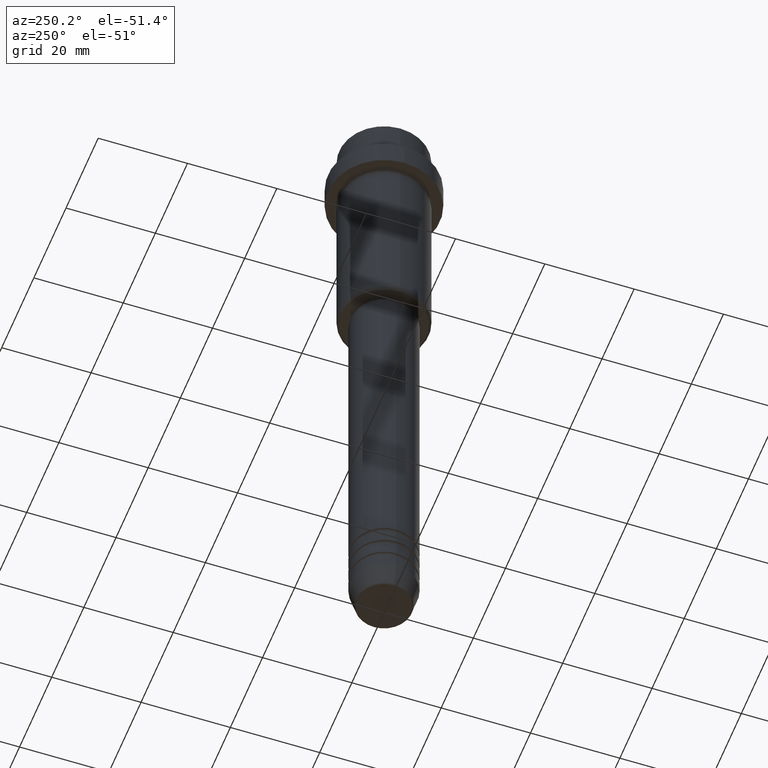
[diagram: clean part render]
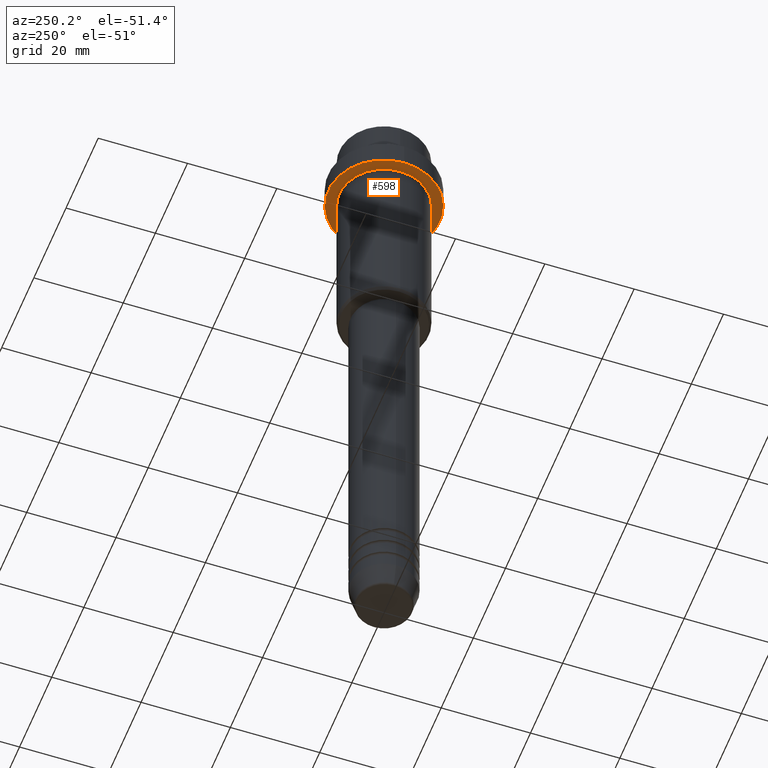
[diagram: same view with one face highlighted and labeled with its STEP entity id]
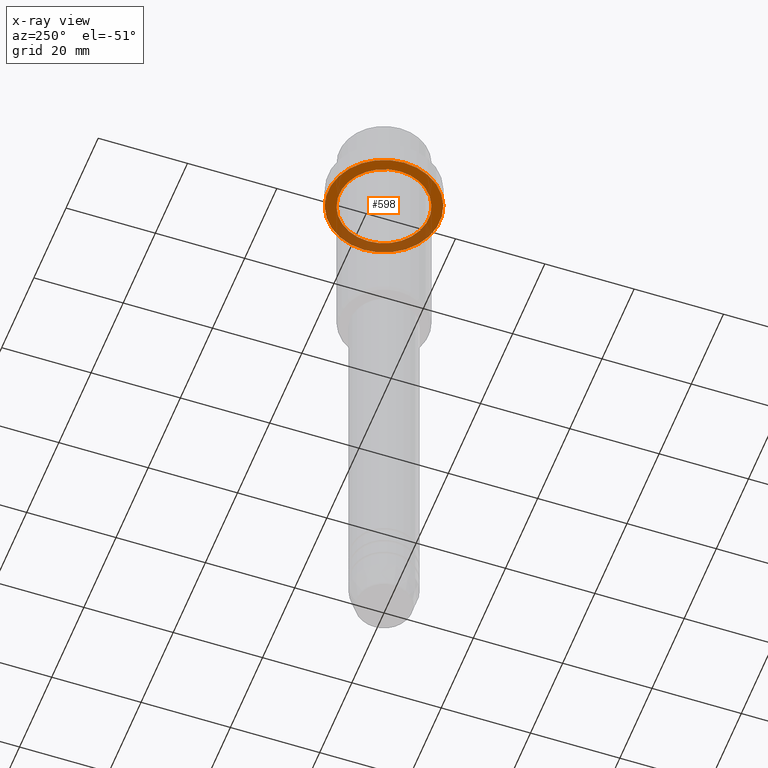
[diagram: x-ray of the same camera — body ghosted, the highlighted face saturated]
A machine part, auxiliary view. The second image highlights one B-rep face of the part: STEP entity #598.
The next image is the same camera in x-ray: the body ghosted, the highlighted face saturated — about 32% of this face is hidden behind the body in this view.
In plain terms, the highlighted planar face has unit normal (0, 0, -1).
Its self-contained STEP definition (entity closure, byte-faithful):
#2 = DIRECTION ( 'NONE',  ( 1.000000000000000000, 0.000000000000000000, 0.000000000000000000 ) ) ;
#36 = DIRECTION ( 'NONE',  ( -0.000000000000000000, -0.000000000000000000, 1.000000000000000000 ) ) ;
#76 = EDGE_CURVE ( 'NONE', #718, #1343, #1332, .T. ) ;
#106 = AXIS2_PLACEMENT_3D ( 'NONE', #1287, #1190, #1396 ) ;
#130 = CARTESIAN_POINT ( 'NONE',  ( 0.000000000000000000, 0.000000000000000000, -15.00000000000000178 ) ) ;
#136 = CARTESIAN_POINT ( 'NONE',  ( 12.50000000000000000, 0.000000000000000000, -15.00000000000000178 ) ) ;
#186 = ORIENTED_EDGE ( 'NONE', *, *, #899, .F. ) ;
#208 = EDGE_LOOP ( 'NONE', ( #1415, #910 ) ) ;
#245 = AXIS2_PLACEMENT_3D ( 'NONE', #475, #36, #1359 ) ;
#332 = CIRCLE ( 'NONE', #245, 12.50000000000000000 ) ;
#410 = ORIENTED_EDGE ( 'NONE', *, *, #1232, .F. ) ;
#444 = AXIS2_PLACEMENT_3D ( 'NONE', #130, #452, #2 ) ;
#452 = DIRECTION ( 'NONE',  ( -0.000000000000000000, -0.000000000000000000, 1.000000000000000000 ) ) ;
#475 = CARTESIAN_POINT ( 'NONE',  ( 0.000000000000000000, 0.000000000000000000, -15.00000000000000178 ) ) ;
#484 = DIRECTION ( 'NONE',  ( -1.000000000000000000, 0.000000000000000000, 0.000000000000000000 ) ) ;
#598 = ADVANCED_FACE ( 'NONE', ( #727, #1164 ), #1091, .T. ) ;
#622 = CARTESIAN_POINT ( 'NONE',  ( 0.000000000000000000, 12.50000000000000000, -15.00000000000000000 ) ) ;
#644 = VERTEX_POINT ( 'NONE', #1394 ) ;
#705 = CARTESIAN_POINT ( 'NONE',  ( 9.999999999999994671, 1.224646799147352665E-15, -15.00000000000000000 ) ) ;
#718 = VERTEX_POINT ( 'NONE', #1208 ) ;
#727 = FACE_BOUND ( 'NONE', #208, .T. ) ;
#729 = VERTEX_POINT ( 'NONE', #136 ) ;
#812 = DIRECTION ( 'NONE',  ( -0.000000000000000000, -0.000000000000000000, 1.000000000000000000 ) ) ;
#899 = EDGE_CURVE ( 'NONE', #644, #729, #332, .T. ) ;
#910 = ORIENTED_EDGE ( 'NONE', *, *, #1027, .T. ) ;
#955 = DIRECTION ( 'NONE',  ( 0.000000000000000000, 0.000000000000000000, -1.000000000000000000 ) ) ;
#997 = CIRCLE ( 'NONE', #106, 9.999999999999994671 ) ;
#1020 = CIRCLE ( 'NONE', #444, 12.50000000000000000 ) ;
#1027 = EDGE_CURVE ( 'NONE', #1343, #718, #997, .T. ) ;
#1078 = DIRECTION ( 'NONE',  ( -1.000000000000000000, 0.000000000000000000, -0.000000000000000000 ) ) ;
#1091 = PLANE ( 'NONE',  #1153 ) ;
#1153 = AXIS2_PLACEMENT_3D ( 'NONE', #622, #955, #1078 ) ;
#1164 = FACE_OUTER_BOUND ( 'NONE', #1320, .T. ) ;
#1190 = DIRECTION ( 'NONE',  ( -0.000000000000000000, -0.000000000000000000, 1.000000000000000000 ) ) ;
#1208 = CARTESIAN_POINT ( 'NONE',  ( -9.999999999999994671, 0.000000000000000000, -15.00000000000000000 ) ) ;
#1218 = AXIS2_PLACEMENT_3D ( 'NONE', #1387, #812, #484 ) ;
#1232 = EDGE_CURVE ( 'NONE', #729, #644, #1020, .T. ) ;
#1287 = CARTESIAN_POINT ( 'NONE',  ( 0.000000000000000000, 0.000000000000000000, -15.00000000000000000 ) ) ;
#1320 = EDGE_LOOP ( 'NONE', ( #410, #186 ) ) ;
#1332 = CIRCLE ( 'NONE', #1218, 9.999999999999994671 ) ;
#1343 = VERTEX_POINT ( 'NONE', #705 ) ;
#1359 = DIRECTION ( 'NONE',  ( 1.000000000000000000, 0.000000000000000000, 0.000000000000000000 ) ) ;
#1387 = CARTESIAN_POINT ( 'NONE',  ( 0.000000000000000000, 0.000000000000000000, -15.00000000000000000 ) ) ;
#1394 = CARTESIAN_POINT ( 'NONE',  ( -12.50000000000000000, 1.530808498934191521E-15, -15.00000000000000178 ) ) ;
#1396 = DIRECTION ( 'NONE',  ( -1.000000000000000000, 0.000000000000000000, 0.000000000000000000 ) ) ;
#1415 = ORIENTED_EDGE ( 'NONE', *, *, #76, .T. ) ;